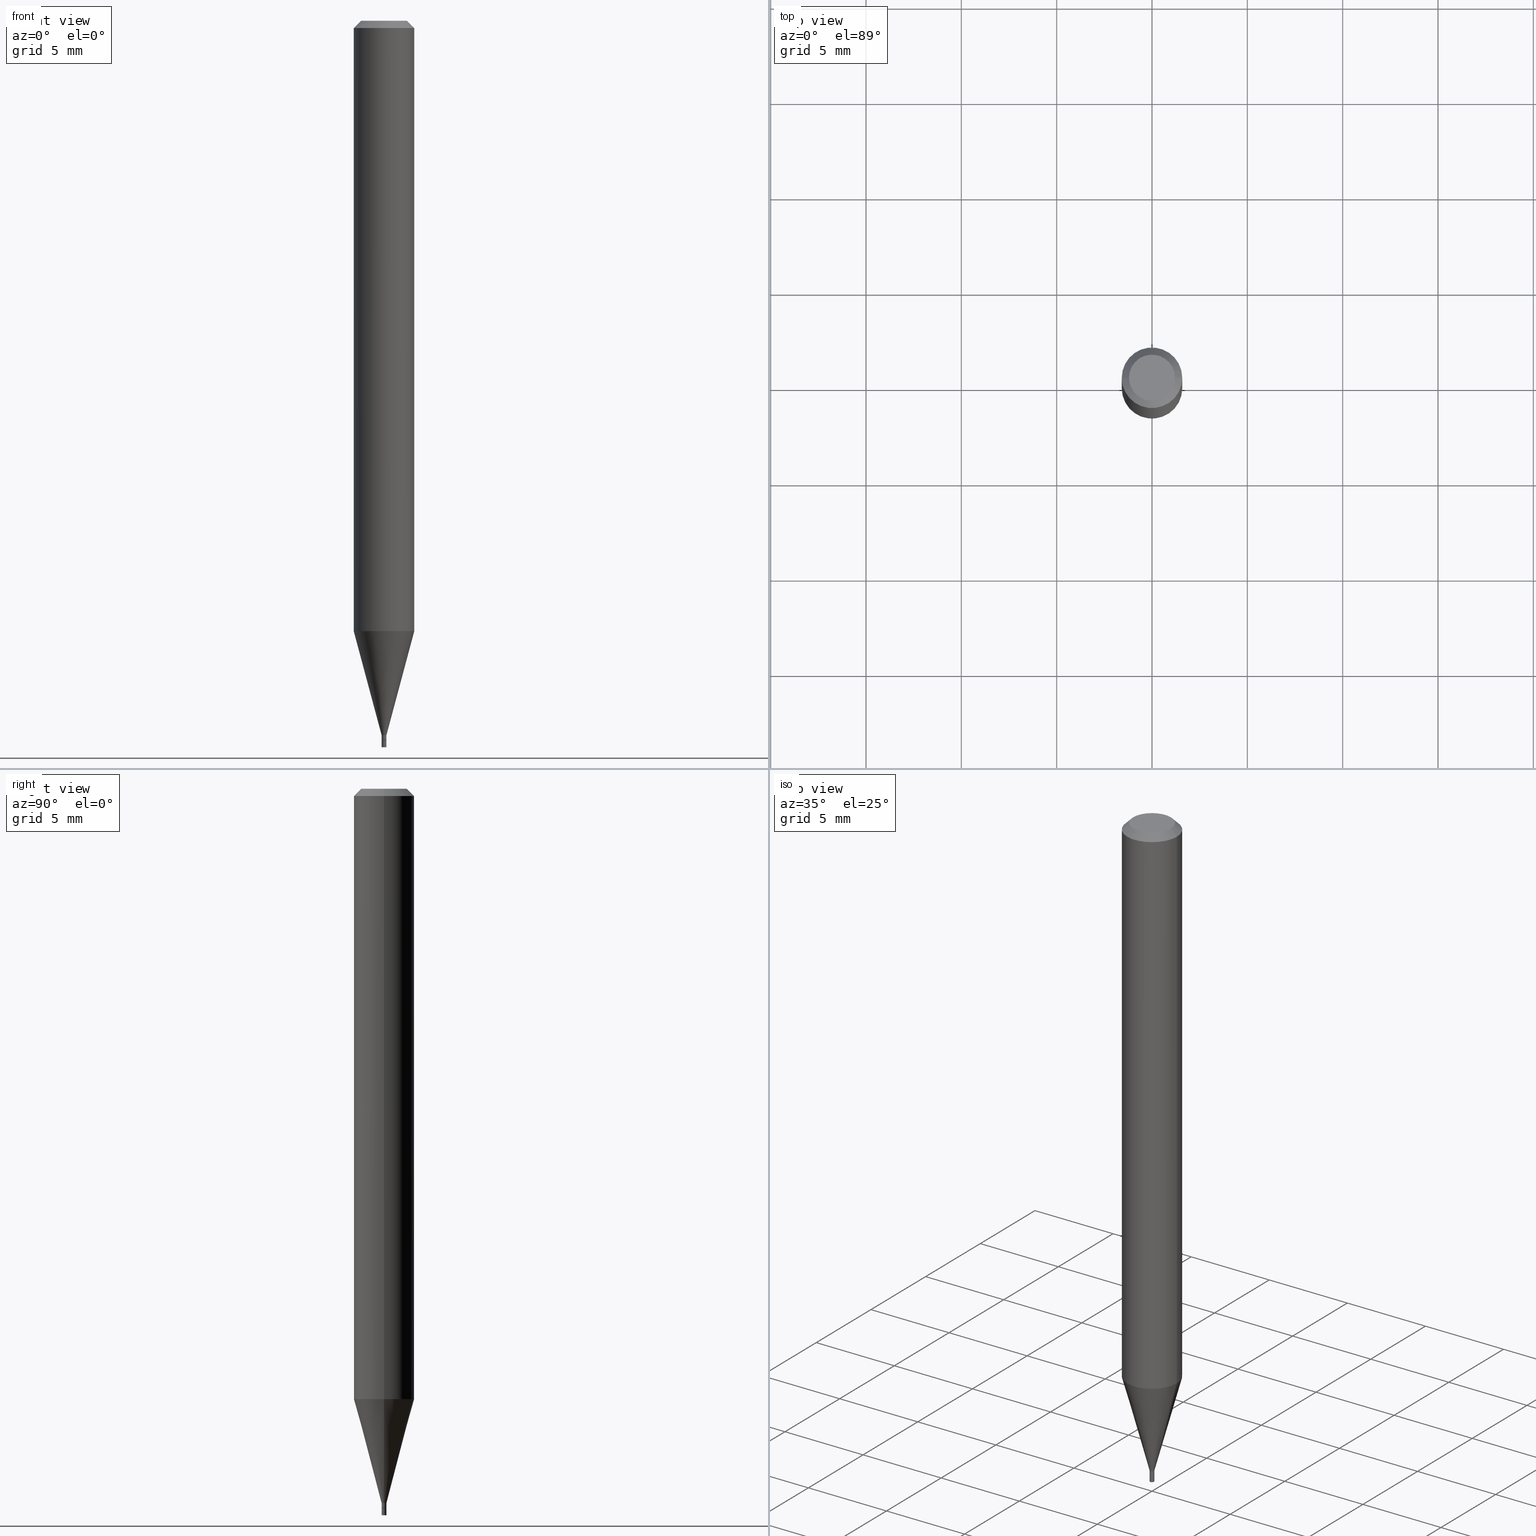
[diagram: canonical four-view strip — front | top / right | iso, engineering-drawing reading convention]
A machine part, canonical four-view strip (front | top / right | iso — engineering-drawing reading convention). The complete STEP part file that produces these views, byte-faithful:
ISO-10303-21;
HEADER;
FILE_DESCRIPTION (( 'STEP AP203' ),
    '1' );
FILE_NAME ('00306.STEP',
    '2024-03-19T20:57:16',
    ( '' ),
    ( '' ),
    'SwSTEP 2.0',
    'SolidWorks 2023',
    '' );
FILE_SCHEMA (( 'CONFIG_CONTROL_DESIGN' ));
ENDSEC;

DATA;
#1 = EDGE_CURVE ( 'NONE', #110, #408, #31, .T. ) ;
#2 = DIRECTION ( 'NONE',  ( 1.000000000000000000, -6.982962677686247778E-15, 0.000000000000000000 ) ) ;
#3 = VECTOR ( 'NONE', #451, 39.37007874015748143 ) ;
#4 = DIRECTION ( 'NONE',  ( 1.000000000000000000, -6.982962677686267499E-15, 4.852736867747366768E-29 ) ) ;
#5 = CYLINDRICAL_SURFACE ( 'NONE', #414, 0.004999999999999922909 ) ;
#6 = EDGE_CURVE ( 'NONE', #383, #111, #248, .T. ) ;
#7 = DIRECTION ( 'NONE',  ( -2.438088387897960049E-29, 3.491481338843145188E-15, 1.000000000000000000 ) ) ;
#8 = FACE_OUTER_BOUND ( 'NONE', #457, .T. ) ;
#9 = ORIENTED_EDGE ( 'NONE', *, *, #431, .F. ) ;
#10 = ORIENTED_EDGE ( 'NONE', *, *, #131, .F. ) ;
#11 = CIRCLE ( 'NONE', #372, 0.004499999999999999660 ) ;
#12 = LOCAL_TIME ( 16, 57, 16.00000000000000000, #160 ) ;
#13 = FACE_OUTER_BOUND ( 'NONE', #164, .T. ) ;
#14 = ORIENTED_EDGE ( 'NONE', *, *, #74, .T. ) ;
#15 = LINE ( 'NONE', #337, #3 ) ;
#16 = ORIENTED_EDGE ( 'NONE', *, *, #247, .F. ) ;
#17 = LINE ( 'NONE', #86, #463 ) ;
#18 = VECTOR ( 'NONE', #412, 39.37007874015748143 ) ;
#19 = PLANE ( 'NONE',  #305 ) ;
#20 = DIRECTION ( 'NONE',  ( -2.445468806185136597E-29, 3.491481338843145583E-15, 1.000000000000000000 ) ) ;
#21 = FACE_OUTER_BOUND ( 'NONE', #353, .T. ) ;
#22 = ADVANCED_FACE ( 'NONE', ( #404 ), #290, .T. ) ;
#23 = VECTOR ( 'NONE', #75, 39.37007874015748143 ) ;
#24 = CYLINDRICAL_SURFACE ( 'NONE', #241, 0.005000000000000000104 ) ;
#25 = CARTESIAN_POINT ( 'NONE',  ( -0.004499999999999999660, -5.152875365072866561E-15, -1.485000000000000098 ) ) ;
#26 = LINE ( 'NONE', #57, #403 ) ;
#27 = DATE_AND_TIME ( #318, #206 ) ;
#28 = ORIENTED_EDGE ( 'NONE', *, *, #366, .F. ) ;
#29 = ADVANCED_FACE ( 'NONE', ( #138 ), #165, .T. ) ;
#30 = AXIS2_PLACEMENT_3D ( 'NONE', #328, #105, #436 ) ;
#31 = LINE ( 'NONE', #271, #333 ) ;
#32 = APPROVAL_ROLE ( '' ) ;
#33 = CARTESIAN_POINT ( 'NONE',  ( 0.004499999999999999660, -5.216273120231659345E-15, -1.485000000000000098 ) ) ;
#34 = LINE ( 'NONE', #283, #281 ) ;
#35 = CIRCLE ( 'NONE', #80, 0.005000000000000000104 ) ;
#36 = DIRECTION ( 'NONE',  ( 1.000000000000000000, -6.982962677686265922E-15, 4.876176775795935793E-29 ) ) ;
#37 = EDGE_LOOP ( 'NONE', ( #10, #199, #462, #296 ) ) ;
#38 = EDGE_CURVE ( 'NONE', #177, #76, #55, .T. ) ;
#39 = DIRECTION ( 'NONE',  ( -2.445468806185136597E-29, 3.491481338843145583E-15, 1.000000000000000000 ) ) ;
#40 = DIRECTION ( 'NONE',  ( -1.000000000000000000, 6.982962677686265922E-15, -4.876176775795935793E-29 ) ) ;
#41 = EDGE_LOOP ( 'NONE', ( #284, #386 ) ) ;
#42 = CARTESIAN_POINT ( 'NONE',  ( 0.000000000000000000, 0.000000000000000000, 0.000000000000000000 ) ) ;
#43 = CARTESIAN_POINT ( 'NONE',  ( 0.004999999999999922042, -5.184849788182071492E-15, -1.475000000000000311 ) ) ;
#44 = CONICAL_SURFACE ( 'NONE', #447, 0.004499999999999999660, 0.7853981633974728149 ) ;
#45 = ADVANCED_FACE ( 'NONE', ( #8 ), #439, .F. ) ;
#46 = DIRECTION ( 'NONE',  ( -2.445468806185136597E-29, 3.491481338843145583E-15, 1.000000000000000000 ) ) ;
#47 = DIRECTION ( 'NONE',  ( 1.000000000000000000, -6.982962677686332186E-15, 0.000000000000000000 ) ) ;
#48 = CARTESIAN_POINT ( 'NONE',  ( 3.631521177184928138E-29, -5.184849788182071492E-15, -1.485000000000000098 ) ) ;
#49 = AXIS2_PLACEMENT_3D ( 'NONE', #73, #323, #402 ) ;
#50 = EDGE_CURVE ( 'NONE', #408, #197, #168, .T. ) ;
#51 = DIRECTION ( 'NONE',  ( 2.445468806185136597E-29, -3.491481338843145583E-15, -1.000000000000000000 ) ) ;
#52 = LINE ( 'NONE', #25, #104 ) ;
#53 = CARTESIAN_POINT ( 'NONE',  ( -0.004499999999999999660, -5.150226137898756937E-15, -1.485000000000000098 ) ) ;
#54 = APPROVAL_ROLE ( '' ) ;
#55 = CIRCLE ( 'NONE', #344, 0.005000000000000000104 ) ;
#56 = CIRCLE ( 'NONE', #326, 0.04749999999999999362 ) ;
#57 = CARTESIAN_POINT ( 'NONE',  ( -0.004999999999999922042, -5.114407838005636380E-15, -1.475000000000000311 ) ) ;
#58 =( NAMED_UNIT ( * ) PLANE_ANGLE_UNIT ( ) SI_UNIT ( $, .RADIAN. ) );
#59 = ADVANCED_FACE ( 'NONE', ( #286 ), #140, .F. ) ;
#60 = DATE_AND_TIME ( #392, #425 ) ;
#61 = ORIENTED_EDGE ( 'NONE', *, *, #38, .F. ) ;
#62 = ADVANCED_FACE ( 'NONE', ( #291 ), #362, .T. ) ;
#63 = APPROVAL_STATUS ( 'not_yet_approved' ) ;
#64 = CLOSED_SHELL ( 'NONE', ( #70, #198, #377, #62, #285, #121, #29, #268, #220, #277, #141, #22 ) ) ;
#65 = CONICAL_SURFACE ( 'NONE', #156, 0.06250000000000000000, 0.7853981633974373988 ) ;
#66 = APPROVAL_PERSON_ORGANIZATION ( #466, #368, #465 ) ;
#67 = ORIENTED_EDGE ( 'NONE', *, *, #85, .T. ) ;
#68 = CARTESIAN_POINT ( 'NONE',  ( -0.04749999999999999362, 3.578768372314216422E-16, 3.292288316969860333E-16 ) ) ;
#69 = DIRECTION ( 'NONE',  ( 1.000000000000000000, -6.982962677686225690E-15, 0.000000000000000000 ) ) ;
#70 = ADVANCED_FACE ( 'NONE', ( #173 ), #5, .T. ) ;
#71 = FACE_OUTER_BOUND ( 'NONE', #129, .T. ) ;
#72 = EDGE_CURVE ( 'NONE', #124, #102, #184, .T. ) ;
#73 = CARTESIAN_POINT ( 'NONE',  ( 3.668203209277704895E-29, -5.237222008264718177E-15, -1.500000000000000222 ) ) ;
#74 = EDGE_CURVE ( 'NONE', #407, #170, #424, .T. ) ;
#75 = DIRECTION ( 'NONE',  ( -2.445468806185136877E-29, 3.491481338843145188E-15, 1.000000000000000000 ) ) ;
#76 = VERTEX_POINT ( 'NONE', #255 ) ;
#77 = DIRECTION ( 'NONE',  ( -2.445468806185136597E-29, 3.491481338843145583E-15, 1.000000000000000000 ) ) ;
#78 = ORIENTED_EDGE ( 'NONE', *, *, #343, .T. ) ;
#79 = ORIENTED_EDGE ( 'NONE', *, *, #98, .T. ) ;
#80 = AXIS2_PLACEMENT_3D ( 'NONE', #226, #376, #47 ) ;
#81 = CARTESIAN_POINT ( 'NONE',  ( -0.004999999999999922042, -4.535503211155172266E-15, -1.475000000000000311 ) ) ;
#82 = ORIENTED_EDGE ( 'NONE', *, *, #74, .F. ) ;
#83 = CARTESIAN_POINT ( 'NONE',  ( 0.005000000000000000104, -3.491481338843132862E-17, 2.438088387897967984E-31 ) ) ;
#84 = DIRECTION ( 'NONE',  ( -1.000000000000000000, 6.982962677686265922E-15, -4.876176775795935793E-29 ) ) ;
#85 = EDGE_CURVE ( 'NONE', #170, #310, #359, .T. ) ;
#86 = CARTESIAN_POINT ( 'NONE',  ( -0.06250000000000000000, 4.440892098500626162E-16, -3.074334431409316114E-30 ) ) ;
#87 = ORIENTED_EDGE ( 'NONE', *, *, #89, .F. ) ;
#88 = CARTESIAN_POINT ( 'NONE',  ( 0.06250000000000000000, -4.888073874380388472E-16, -0.01499999999999999944 ) ) ;
#89 = EDGE_CURVE ( 'NONE', #256, #331, #299, .T. ) ;
#90 = ORIENTED_EDGE ( 'NONE', *, *, #228, .T. ) ;
#91 = LINE ( 'NONE', #345, #113 ) ;
#92 = CALENDAR_DATE ( 2024, 19, 3 ) ;
#93 = AXIS2_PLACEMENT_3D ( 'NONE', #258, #136, #4 ) ;
#94 = CIRCLE ( 'NONE', #149, 0.005000000000000000104 ) ;
#95 = PERSON_AND_ORGANIZATION_ROLE ( 'classification_officer' ) ;
#96 = CIRCLE ( 'NONE', #356, 0.004999999999999922909 ) ;
#97 = DIRECTION ( 'NONE',  ( 2.438088387897960049E-29, -3.491481338843145188E-15, -1.000000000000000000 ) ) ;
#98 = EDGE_CURVE ( 'NONE', #310, #235, #441, .T. ) ;
#99 = CARTESIAN_POINT ( 'NONE',  ( 3.631521177184928138E-29, -5.184849788182071492E-15, -1.485000000000000098 ) ) ;
#100 = ORIENTED_EDGE ( 'NONE', *, *, #317, .F. ) ;
#101 = CARTESIAN_POINT ( 'NONE',  ( 0.000000000000000000, 0.000000000000000000, 0.000000000000000000 ) ) ;
#102 = VERTEX_POINT ( 'NONE', #401 ) ;
#103 = AXIS2_PLACEMENT_3D ( 'NONE', #433, #7, #36 ) ;
#104 = VECTOR ( 'NONE', #130, 39.37007874015748854 ) ;
#105 = DIRECTION ( 'NONE',  ( -2.445468806185136597E-29, 3.491481338843145583E-15, 1.000000000000000000 ) ) ;
#106 = PRODUCT_RELATED_PRODUCT_CATEGORY ( 'detail', '', ( #172 ) ) ;
#107 = APPLICATION_CONTEXT ( 'configuration controlled 3d designs of mechanical parts and assemblies' ) ;
#108 = CARTESIAN_POINT ( 'NONE',  ( 3.630298442781835897E-29, -5.183104047512649988E-15, -1.484500000000000153 ) ) ;
#109 = DIRECTION ( 'NONE',  ( 1.000000000000000000, -6.982962677686225690E-15, 0.000000000000000000 ) ) ;
#110 = VERTEX_POINT ( 'NONE', #217 ) ;
#111 = VERTEX_POINT ( 'NONE', #33 ) ;
#112 = CARTESIAN_POINT ( 'NONE',  ( -0.06250000000000000000, -1.782440797268646111E-15, -0.01499999999999999944 ) ) ;
#113 = VECTOR ( 'NONE', #269, 39.37007874015748143 ) ;
#114 = DIRECTION ( 'NONE',  ( 1.000000000000000000, -6.982962677686266711E-15, 0.000000000000000000 ) ) ;
#115 = PRODUCT_DEFINITION ( 'UNKNOWN', '', #426, #188 ) ;
#116 = CARTESIAN_POINT ( 'NONE',  ( 3.630298442781835897E-29, -5.183104047512649988E-15, -1.484500000000000153 ) ) ;
#117 = CARTESIAN_POINT ( 'NONE',  ( 3.607066489123076592E-29, -5.149934974793640632E-15, -1.475000000000000311 ) ) ;
#118 = AXIS2_PLACEMENT_3D ( 'NONE', #361, #287, #438 ) ;
#119 = AXIS2_PLACEMENT_3D ( 'NONE', #176, #185, #303 ) ;
#120 = SECURITY_CLASSIFICATION ( '', '', #275 ) ;
#121 = ADVANCED_FACE ( 'NONE', ( #280 ), #254, .T. ) ;
#122 = FACE_OUTER_BOUND ( 'NONE', #391, .T. ) ;
#123 = CALENDAR_DATE ( 2024, 19, 3 ) ;
#124 = VERTEX_POINT ( 'NONE', #68 ) ;
#125 = DIRECTION ( 'NONE',  ( 0.2588190451025213501, 1.565188264969621968E-15, 0.9659258262890682012 ) ) ;
#126 = DIRECTION ( 'NONE',  ( 0.000000000000000000, 0.000000000000000000, 1.000000000000000000 ) ) ;
#127 = ORIENTED_EDGE ( 'NONE', *, *, #72, .T. ) ;
#128 = PERSON_AND_ORGANIZATION_ROLE ( 'design_supplier' ) ;
#129 = EDGE_LOOP ( 'NONE', ( #395, #292, #437, #203 ) ) ;
#130 = DIRECTION ( 'NONE',  ( -0.7071067811865647812, 7.493145998870415691E-15, 0.7071067811865301422 ) ) ;
#131 = EDGE_CURVE ( 'NONE', #102, #408, #34, .T. ) ;
#132 = CARTESIAN_POINT ( 'NONE',  ( 0.000000000000000000, 0.000000000000000000, 0.000000000000000000 ) ) ;
#133 = DIRECTION ( 'NONE',  ( -2.445468806185136597E-29, 3.491481338843145583E-15, 1.000000000000000000 ) ) ;
#134 = AXIS2_PLACEMENT_3D ( 'NONE', #117, #46, #378 ) ;
#135 = APPROVAL ( #63, 'UNSPECIFIED' ) ;
#136 = DIRECTION ( 'NONE',  ( -2.445468806185136597E-29, 3.491481338843145583E-15, 1.000000000000000000 ) ) ;
#137 = EDGE_LOOP ( 'NONE', ( #14, #67, #454, #423 ) ) ;
#138 = FACE_OUTER_BOUND ( 'NONE', #257, .T. ) ;
#139 = ORIENTED_EDGE ( 'NONE', *, *, #50, .T. ) ;
#140 = PLANE ( 'NONE',  #432 ) ;
#141 = ADVANCED_FACE ( 'NONE', ( #71 ), #274, .T. ) ;
#142 = CARTESIAN_POINT ( 'NONE',  ( 3.491481338846764088E-17, 0.004999999999994815016, -1.485000000000000098 ) ) ;
#143 = EDGE_LOOP ( 'NONE', ( #397, #79, #200, #9 ) ) ;
#144 = DIRECTION ( 'NONE',  ( -2.445468806185136597E-29, 3.491481338843145583E-15, 1.000000000000000000 ) ) ;
#145 = ORIENTED_EDGE ( 'NONE', *, *, #428, .F. ) ;
#146 = DIRECTION ( 'NONE',  ( -2.445468806185136597E-29, 3.491481338843145583E-15, 1.000000000000000000 ) ) ;
#147 = ORIENTED_EDGE ( 'NONE', *, *, #1, .T. ) ;
#148 = CC_DESIGN_DATE_AND_TIME_ASSIGNMENT ( #60, #352, ( #120 ) ) ;
#149 = AXIS2_PLACEMENT_3D ( 'NONE', #418, #455, #196 ) ;
#150 = DIRECTION ( 'NONE',  ( 0.7071067811865647812, -2.468850131082438104E-15, 0.7071067811865301422 ) ) ;
#151 = FACE_OUTER_BOUND ( 'NONE', #393, .T. ) ;
#152 = DIRECTION ( 'NONE',  ( 1.000000000000000000, -6.982962677686267499E-15, 4.852736867747366768E-29 ) ) ;
#153 = CC_DESIGN_PERSON_AND_ORGANIZATION_ASSIGNMENT ( #312, #315, ( #426 ) ) ;
#154 = DIRECTION ( 'NONE',  ( 2.445468806185136597E-29, -3.491481338843145583E-15, -1.000000000000000000 ) ) ;
#155 = APPLICATION_PROTOCOL_DEFINITION ( 'international standard', 'config_control_design', 1994, #107 ) ;
#156 = AXIS2_PLACEMENT_3D ( 'NONE', #230, #51, #222 ) ;
#157 = DIRECTION ( 'NONE',  ( -2.445468806185136597E-29, 3.491481338843145583E-15, 1.000000000000000000 ) ) ;
#158 = APPROVAL_DATE_TIME ( #346, #240 ) ;
#159 = CARTESIAN_POINT ( 'NONE',  ( 0.000000000000000000, 0.000000000000000000, 0.000000000000000000 ) ) ;
#160 = COORDINATED_UNIVERSAL_TIME_OFFSET ( 5, 0, .BEHIND. ) ;
#161 = EDGE_CURVE ( 'NONE', #235, #310, #229, .T. ) ;
#162 = SHAPE_DEFINITION_REPRESENTATION ( #370, #464 ) ;
#163 = LOCAL_TIME ( 16, 57, 16.00000000000000000, #390 ) ;
#164 = EDGE_LOOP ( 'NONE', ( #127, #347 ) ) ;
#165 = CYLINDRICAL_SURFACE ( 'NONE', #325, 0.06250000000000000000 ) ;
#166 = CC_DESIGN_PERSON_AND_ORGANIZATION_ASSIGNMENT ( #419, #349, ( #115 ) ) ;
#167 = CARTESIAN_POINT ( 'NONE',  ( 0.000000000000000000, 0.000000000000000000, 0.000000000000000000 ) ) ;
#168 = CIRCLE ( 'NONE', #379, 0.06250000000000000000 ) ;
#169 = DIRECTION ( 'NONE',  ( -2.445468806185136597E-29, 3.491481338843145583E-15, 1.000000000000000000 ) ) ;
#170 = VERTEX_POINT ( 'NONE', #449 ) ;
#171 = DIRECTION ( 'NONE',  ( -2.445468806185136597E-29, 3.491481338843145583E-15, 1.000000000000000000 ) ) ;
#172 = PRODUCT ( '00306', '00306', '', ( #396 ) ) ;
#173 = FACE_OUTER_BOUND ( 'NONE', #137, .T. ) ;
#174 = CIRCLE ( 'NONE', #210, 0.06250000000000000000 ) ;
#175 = AXIS2_PLACEMENT_3D ( 'NONE', #189, #421, #382 ) ;
#176 = CARTESIAN_POINT ( 'NONE',  ( 3.631521177184928138E-29, -5.184849788182071492E-15, -1.485000000000000098 ) ) ;
#177 = VERTEX_POINT ( 'NONE', #266 ) ;
#178 = ORIENTED_EDGE ( 'NONE', *, *, #1, .F. ) ;
#179 = DIMENSIONAL_EXPONENTS ( 1.000000000000000000, 0.000000000000000000, 0.000000000000000000, 0.000000000000000000, 0.000000000000000000, 0.000000000000000000, 0.000000000000000000 ) ;
#180 = PERSON ( 'UNSPECIFIED', 'UNSPECIFIED', 'UNSPECIFIED', ('UNSPECIFIED'), ('UNSPECIFIED'), ('UNSPECIFIED') ) ;
#181 = CARTESIAN_POINT ( 'NONE',  ( 3.668203209277705088E-31, -5.237222008264718399E-17, -0.01499999999999999944 ) ) ;
#182 = LINE ( 'NONE', #446, #249 ) ;
#183 = EDGE_CURVE ( 'NONE', #111, #407, #182, .T. ) ;
#184 = CIRCLE ( 'NONE', #93, 0.04749999999999999362 ) ;
#185 = DIRECTION ( 'NONE',  ( -2.438088387897960049E-29, 3.491481338843145188E-15, 1.000000000000000000 ) ) ;
#186 = FACE_OUTER_BOUND ( 'NONE', #242, .T. ) ;
#187 = CC_DESIGN_DATE_AND_TIME_ASSIGNMENT ( #27, #357, ( #115 ) ) ;
#188 = DESIGN_CONTEXT ( 'detailed design', #107, 'design' ) ;
#189 = CARTESIAN_POINT ( 'NONE',  ( 3.082286193725132894E-29, -4.400687794154770769E-15, -1.260407078564790062 ) ) ;
#190 = MANIFOLD_SOLID_BREP ( 'Body-Move/Copy2[1]', #204 ) ;
#191 = CYLINDRICAL_SURFACE ( 'NONE', #387, 0.005000000000000000104 ) ;
#192 = CALENDAR_DATE ( 2024, 19, 3 ) ;
#193 = AXIS2_PLACEMENT_3D ( 'NONE', #367, #39, #215 ) ;
#194 = ORGANIZATION ( 'UNSPECIFIED', 'UNSPECIFIED', '' ) ;
#195 = MANIFOLD_SOLID_BREP ( 'Body-Move/Copy2[2]', #64 ) ;
#196 = DIRECTION ( 'NONE',  ( 1.000000000000000000, -6.982962677686332186E-15, 0.000000000000000000 ) ) ;
#197 = VERTEX_POINT ( 'NONE', #112 ) ;
#198 = ADVANCED_FACE ( 'NONE', ( #265 ), #44, .T. ) ;
#199 = ORIENTED_EDGE ( 'NONE', *, *, #72, .F. ) ;
#200 = ORIENTED_EDGE ( 'NONE', *, *, #428, .T. ) ;
#201 = APPROVAL_DATE_TIME ( #243, #368 ) ;
#202 = DATE_AND_TIME ( #123, #163 ) ;
#203 = ORIENTED_EDGE ( 'NONE', *, *, #213, .F. ) ;
#204 = CLOSED_SHELL ( 'NONE', ( #360, #45, #415, #59 ) ) ;
#205 = AXIS2_PLACEMENT_3D ( 'NONE', #263, #144, #373 ) ;
#206 = LOCAL_TIME ( 16, 57, 16.00000000000000000, #246 ) ;
#207 = ORIENTED_EDGE ( 'NONE', *, *, #355, .F. ) ;
#208 = DIRECTION ( 'NONE',  ( -2.445468806185136597E-29, 3.491481338843145583E-15, 1.000000000000000000 ) ) ;
#209 = DIRECTION ( 'NONE',  ( -2.445468806185136597E-29, 3.491481338843145583E-15, 1.000000000000000000 ) ) ;
#210 = AXIS2_PLACEMENT_3D ( 'NONE', #181, #146, #114 ) ;
#211 = CC_DESIGN_SECURITY_CLASSIFICATION ( #120, ( #426 ) ) ;
#212 = CARTESIAN_POINT ( 'NONE',  ( 3.607066489123076592E-29, -5.149934974793640632E-15, -1.475000000000000311 ) ) ;
#213 = EDGE_CURVE ( 'NONE', #170, #407, #96, .T. ) ;
#214 = APPLICATION_CONTEXT ( 'configuration controlled 3d designs of mechanical parts and assemblies' ) ;
#215 = DIRECTION ( 'NONE',  ( 1.000000000000000000, -6.982962677686247778E-15, 0.000000000000000000 ) ) ;
#216 = ORIENTED_EDGE ( 'NONE', *, *, #247, .T. ) ;
#217 = CARTESIAN_POINT ( 'NONE',  ( 0.06249999999999999306, -4.837122961510163228E-15, -1.260407078564790062 ) ) ;
#218 = ORIENTED_EDGE ( 'NONE', *, *, #6, .F. ) ;
#219 = ORIENTED_EDGE ( 'NONE', *, *, #366, .T. ) ;
#220 = ADVANCED_FACE ( 'NONE', ( #13 ), #19, .F. ) ;
#221 = CONICAL_SURFACE ( 'NONE', #134, 0.004999999999999922042, 0.2617993877991500740 ) ;
#222 = DIRECTION ( 'NONE',  ( -1.000000000000000000, 6.982962677686266711E-15, 0.000000000000000000 ) ) ;
#223 = ORIENTED_EDGE ( 'NONE', *, *, #98, .F. ) ;
#224 = ORIENTED_EDGE ( 'NONE', *, *, #253, .F. ) ;
#225 = EDGE_CURVE ( 'NONE', #407, #235, #15, .T. ) ;
#226 = CARTESIAN_POINT ( 'NONE',  ( 3.631521177184928138E-29, -5.184849788182071492E-15, -1.485000000000000098 ) ) ;
#227 = CARTESIAN_POINT ( 'NONE',  ( -8.051188380117617343E-45, 1.149496322079166104E-30, 3.292288316969884985E-16 ) ) ;
#228 = EDGE_CURVE ( 'NONE', #381, #197, #17, .T. ) ;
#229 = CIRCLE ( 'NONE', #289, 0.004999999999999922042 ) ;
#230 = CARTESIAN_POINT ( 'NONE',  ( 3.668203209277705088E-31, -5.237222008264718399E-17, -0.01499999999999999944 ) ) ;
#231 = EDGE_LOOP ( 'NONE', ( #350, #354, #82, #298 ) ) ;
#232 = LINE ( 'NONE', #458, #267 ) ;
#233 = FACE_OUTER_BOUND ( 'NONE', #336, .T. ) ;
#234 = PERSON_AND_ORGANIZATION ( #180, #194 ) ;
#235 = VERTEX_POINT ( 'NONE', #43 ) ;
#236 = DIRECTION ( 'NONE',  ( -2.445468806185136597E-29, 3.491481338843145583E-15, 1.000000000000000000 ) ) ;
#237 = AXIS2_PLACEMENT_3D ( 'NONE', #42, #259, #369 ) ;
#238 = APPLICATION_PROTOCOL_DEFINITION ( 'international standard', 'config_control_design', 1994, #214 ) ;
#239 = CIRCLE ( 'NONE', #205, 0.06250000000000000000 ) ;
#240 = APPROVAL ( #385, 'UNSPECIFIED' ) ;
#241 = AXIS2_PLACEMENT_3D ( 'NONE', #272, #157, #311 ) ;
#242 = EDGE_LOOP ( 'NONE', ( #316, #445, #16, #145 ) ) ;
#243 = DATE_AND_TIME ( #92, #398 ) ;
#244 = COORDINATED_UNIVERSAL_TIME_OFFSET ( 5, 0, .BEHIND. ) ;
#245 = ORIENTED_EDGE ( 'NONE', *, *, #399, .F. ) ;
#246 = COORDINATED_UNIVERSAL_TIME_OFFSET ( 5, 0, .BEHIND. ) ;
#247 = EDGE_CURVE ( 'NONE', #110, #381, #239, .T. ) ;
#248 = CIRCLE ( 'NONE', #118, 0.004499999999999999660 ) ;
#249 = VECTOR ( 'NONE', #150, 39.37007874015748854 ) ;
#250 = DIRECTION ( 'NONE',  ( -2.445468806185136597E-29, 3.491481338843145583E-15, 1.000000000000000000 ) ) ;
#251 = DIRECTION ( 'NONE',  ( 1.000000000000000000, -6.982962677686266711E-15, 0.000000000000000000 ) ) ;
#252 = DIRECTION ( 'NONE',  ( 1.000000000000000000, -6.982962677686246200E-15, 0.000000000000000000 ) ) ;
#253 = EDGE_CURVE ( 'NONE', #111, #383, #11, .T. ) ;
#254 = CONICAL_SURFACE ( 'NONE', #452, 0.004999999999999922042, 0.2617993877991500740 ) ;
#255 = CARTESIAN_POINT ( 'NONE',  ( -0.005000000000000000104, -5.175508761435389793E-15, -1.485000000000000098 ) ) ;
#256 = VERTEX_POINT ( 'NONE', #448 ) ;
#257 = EDGE_LOOP ( 'NONE', ( #322, #351, #147, #338 ) ) ;
#258 = CARTESIAN_POINT ( 'NONE',  ( -8.051188380117617343E-45, 1.149496322079166104E-30, 3.292288316969884985E-16 ) ) ;
#259 = DIRECTION ( 'NONE',  ( -2.445468806185136597E-29, 3.491481338843145583E-15, 1.000000000000000000 ) ) ;
#260 = CC_DESIGN_PERSON_AND_ORGANIZATION_ASSIGNMENT ( #278, #430, ( #172 ) ) ;
#261 = PLANE ( 'NONE',  #119 ) ;
#262 = VECTOR ( 'NONE', #341, 39.37007874015748143 ) ;
#263 = CARTESIAN_POINT ( 'NONE',  ( 3.082286193725132894E-29, -4.400687794154770769E-15, -1.260407078564790062 ) ) ;
#264 = LINE ( 'NONE', #83, #262 ) ;
#265 = FACE_OUTER_BOUND ( 'NONE', #231, .T. ) ;
#266 = CARTESIAN_POINT ( 'NONE',  ( 0.005000000000000000104, -5.219764601570503141E-15, -1.485000000000000098 ) ) ;
#267 = VECTOR ( 'NONE', #125, 39.37007874015747433 ) ;
#268 = ADVANCED_FACE ( 'NONE', ( #444 ), #65, .T. ) ;
#269 = DIRECTION ( 'NONE',  ( -2.445468806185136877E-29, 3.491481338843145188E-15, 1.000000000000000000 ) ) ;
#270 = APPROVAL_DATE_TIME ( #202, #135 ) ;
#271 = CARTESIAN_POINT ( 'NONE',  ( 0.06250000000000000000, -4.364351673553916694E-16, 3.047610484872459871E-30 ) ) ;
#272 = CARTESIAN_POINT ( 'NONE',  ( 0.000000000000000000, 0.000000000000000000, 0.000000000000000000 ) ) ;
#273 =( LENGTH_UNIT ( ) NAMED_UNIT ( * ) SI_UNIT ( $, .METRE. ) );
#274 = CONICAL_SURFACE ( 'NONE', #334, 0.004499999999999999660, 0.7853981633974728149 ) ;
#275 = SECURITY_CLASSIFICATION_LEVEL ( 'unclassified' ) ;
#276 = LENGTH_MEASURE_WITH_UNIT ( LENGTH_MEASURE( 0.02539999999999999897 ), #273 );
#277 = ADVANCED_FACE ( 'NONE', ( #151 ), #261, .F. ) ;
#278 = PERSON_AND_ORGANIZATION ( #180, #194 ) ;
#279 = UNCERTAINTY_MEASURE_WITH_UNIT (LENGTH_MEASURE( 1.000000000000000082E-05 ), #321, 'distance_accuracy_value', 'NONE');
#280 = FACE_OUTER_BOUND ( 'NONE', #143, .T. ) ;
#281 = VECTOR ( 'NONE', #435, 39.37007874015748143 ) ;
#282 = APPROVAL_PERSON_ORGANIZATION ( #234, #240, #54 ) ;
#283 = CARTESIAN_POINT ( 'NONE',  ( 0.06250000000000000000, -4.811533449433679005E-16, -0.01499999999999999944 ) ) ;
#284 = ORIENTED_EDGE ( 'NONE', *, *, #38, .T. ) ;
#285 = ADVANCED_FACE ( 'NONE', ( #186 ), #221, .T. ) ;
#286 = FACE_OUTER_BOUND ( 'NONE', #41, .T. ) ;
#287 = DIRECTION ( 'NONE',  ( -2.445468806185136597E-29, 3.491481338843145583E-15, 1.000000000000000000 ) ) ;
#288 = CARTESIAN_POINT ( 'NONE',  ( 3.631521177184928138E-29, -5.184849788182071492E-15, -1.485000000000000098 ) ) ;
#289 = AXIS2_PLACEMENT_3D ( 'NONE', #212, #413, #411 ) ;
#290 = CYLINDRICAL_SURFACE ( 'NONE', #237, 0.004999999999999922909 ) ;
#291 = FACE_OUTER_BOUND ( 'NONE', #375, .T. ) ;
#292 = ORIENTED_EDGE ( 'NONE', *, *, #6, .T. ) ;
#293 = ORIENTED_EDGE ( 'NONE', *, *, #399, .T. ) ;
#294 = EDGE_CURVE ( 'NONE', #197, #408, #174, .T. ) ;
#295 = CARTESIAN_POINT ( 'NONE',  ( 3.631521177184928138E-29, -5.184849788182071492E-15, -1.485000000000000098 ) ) ;
#296 = ORIENTED_EDGE ( 'NONE', *, *, #294, .T. ) ;
#297 = CARTESIAN_POINT ( 'NONE',  ( -0.06250000000000000000, 3.840629472727444916E-16, -0.01499999999999999944 ) ) ;
#298 = ORIENTED_EDGE ( 'NONE', *, *, #183, .F. ) ;
#299 = CIRCLE ( 'NONE', #49, 0.005000000000000000104 ) ;
#300 = CARTESIAN_POINT ( 'NONE',  ( 3.316907271900976096E-16, 0.04749999999999999362, -1.230947746555162994E-18 ) ) ;
#301 = CARTESIAN_POINT ( 'NONE',  ( 0.005000000000000000104, -5.272136821653149826E-15, -1.500000000000000222 ) ) ;
#302 = EDGE_CURVE ( 'NONE', #124, #197, #340, .T. ) ;
#303 = DIRECTION ( 'NONE',  ( 1.000000000000000000, -6.982962677686265922E-15, 4.876176775795935793E-29 ) ) ;
#304 = ORIENTED_EDGE ( 'NONE', *, *, #85, .F. ) ;
#305 = AXIS2_PLACEMENT_3D ( 'NONE', #300, #417, #84 ) ;
#306 = DIRECTION ( 'NONE',  ( 1.000000000000000000, -6.982962677686265922E-15, 4.876176775795935793E-29 ) ) ;
#307 =( GEOMETRIC_REPRESENTATION_CONTEXT ( 3 ) GLOBAL_UNCERTAINTY_ASSIGNED_CONTEXT ( ( #279 ) ) GLOBAL_UNIT_ASSIGNED_CONTEXT ( ( #321, #58, #422 ) ) REPRESENTATION_CONTEXT ( 'NONE', 'WORKASPACE' ) );
#308 = DIRECTION ( 'NONE',  ( 1.000000000000000000, 0.000000000000000000, 0.000000000000000000 ) ) ;
#309 = ORIENTED_EDGE ( 'NONE', *, *, #131, .T. ) ;
#310 = VERTEX_POINT ( 'NONE', #81 ) ;
#311 = DIRECTION ( 'NONE',  ( 1.000000000000000000, -6.982962677686265922E-15, 4.876176775795935793E-29 ) ) ;
#312 = PERSON_AND_ORGANIZATION ( #180, #194 ) ;
#313 = ORIENTED_EDGE ( 'NONE', *, *, #225, .T. ) ;
#314 = CARTESIAN_POINT ( 'NONE',  ( 3.668203209277705088E-31, -5.237222008264718399E-17, -0.01499999999999999944 ) ) ;
#315 = PERSON_AND_ORGANIZATION_ROLE ( 'creator' ) ;
#316 = ORIENTED_EDGE ( 'NONE', *, *, #161, .T. ) ;
#317 = EDGE_CURVE ( 'NONE', #76, #177, #35, .T. ) ;
#318 = CALENDAR_DATE ( 2024, 19, 3 ) ;
#319 = EDGE_LOOP ( 'NONE', ( #304, #374, #313, #223 ) ) ;
#320 = COORDINATED_UNIVERSAL_TIME_OFFSET ( 5, 0, .BEHIND. ) ;
#321 =( CONVERSION_BASED_UNIT ( 'INCH', #276 ) LENGTH_UNIT ( ) NAMED_UNIT ( #179 ) );
#322 = ORIENTED_EDGE ( 'NONE', *, *, #228, .F. ) ;
#323 = DIRECTION ( 'NONE',  ( -2.445468806185136597E-29, 3.491481338843145583E-15, 1.000000000000000000 ) ) ;
#324 = DIRECTION ( 'NONE',  ( -2.445468806185136597E-29, 3.491481338843145583E-15, 1.000000000000000000 ) ) ;
#325 = AXIS2_PLACEMENT_3D ( 'NONE', #167, #209, #400 ) ;
#326 = AXIS2_PLACEMENT_3D ( 'NONE', #227, #20, #152 ) ;
#327 = CC_DESIGN_APPROVAL ( #240, ( #426 ) ) ;
#328 = CARTESIAN_POINT ( 'NONE',  ( 0.000000000000000000, 0.000000000000000000, 0.000000000000000000 ) ) ;
#329 = DIRECTION ( 'NONE',  ( 1.000000000000000000, -6.982962677686267499E-15, 4.876176775795935793E-29 ) ) ;
#330 = CARTESIAN_POINT ( 'NONE',  ( 3.668203209277705088E-31, -5.237222008264718399E-17, -0.01499999999999999944 ) ) ;
#331 = VERTEX_POINT ( 'NONE', #301 ) ;
#332 = CC_DESIGN_PERSON_AND_ORGANIZATION_ASSIGNMENT ( #427, #95, ( #120 ) ) ;
#333 = VECTOR ( 'NONE', #420, 39.37007874015748143 ) ;
#334 = AXIS2_PLACEMENT_3D ( 'NONE', #99, #169, #69 ) ;
#335 = DIRECTION ( 'NONE',  ( 1.000000000000000000, -6.982962677686225690E-15, 0.000000000000000000 ) ) ;
#336 = EDGE_LOOP ( 'NONE', ( #28, #429, #78, #100 ) ) ;
#337 = CARTESIAN_POINT ( 'NONE',  ( 0.004999999999999922909, -3.491481338843079861E-17, 2.438088387897930324E-31 ) ) ;
#338 = ORIENTED_EDGE ( 'NONE', *, *, #294, .F. ) ;
#339 = DIRECTION ( 'NONE',  ( -2.445468806185136597E-29, 3.491481338843145583E-15, 1.000000000000000000 ) ) ;
#340 = LINE ( 'NONE', #297, #18 ) ;
#341 = DIRECTION ( 'NONE',  ( -2.445468806185136877E-29, 3.491481338843145188E-15, 1.000000000000000000 ) ) ;
#342 = DIRECTION ( 'NONE',  ( -0.2588190451025213501, 5.211531920934551042E-15, 0.9659258262890682012 ) ) ;
#343 = EDGE_CURVE ( 'NONE', #331, #177, #264, .T. ) ;
#344 = AXIS2_PLACEMENT_3D ( 'NONE', #288, #324, #406 ) ;
#345 = CARTESIAN_POINT ( 'NONE',  ( -0.005000000000000000104, 3.552713678800501003E-17, -2.459467545127453136E-31 ) ) ;
#346 = DATE_AND_TIME ( #192, #12 ) ;
#347 = ORIENTED_EDGE ( 'NONE', *, *, #355, .T. ) ;
#348 = DIRECTION ( 'NONE',  ( -1.000000000000000000, 6.982962677686266711E-15, 0.000000000000000000 ) ) ;
#349 = PERSON_AND_ORGANIZATION_ROLE ( 'creator' ) ;
#350 = ORIENTED_EDGE ( 'NONE', *, *, #253, .T. ) ;
#351 = ORIENTED_EDGE ( 'NONE', *, *, #431, .T. ) ;
#352 = DATE_TIME_ROLE ( 'classification_date' ) ;
#353 = EDGE_LOOP ( 'NONE', ( #207, #309, #139, #460 ) ) ;
#354 = ORIENTED_EDGE ( 'NONE', *, *, #442, .T. ) ;
#355 = EDGE_CURVE ( 'NONE', #102, #124, #56, .T. ) ;
#356 = AXIS2_PLACEMENT_3D ( 'NONE', #116, #339, #380 ) ;
#357 = DATE_TIME_ROLE ( 'creation_date' ) ;
#358 = APPROVAL_PERSON_ORGANIZATION ( #456, #135, #32 ) ;
#359 = LINE ( 'NONE', #405, #23 ) ;
#360 = ADVANCED_FACE ( 'NONE', ( #122 ), #191, .T. ) ;
#361 = CARTESIAN_POINT ( 'NONE',  ( 3.631521177184928138E-29, -5.184849788182071492E-15, -1.485000000000000098 ) ) ;
#362 = CYLINDRICAL_SURFACE ( 'NONE', #30, 0.06250000000000000000 ) ;
#363 = ORIENTED_EDGE ( 'NONE', *, *, #50, .F. ) ;
#364 = AXIS2_PLACEMENT_3D ( 'NONE', #314, #154, #348 ) ;
#365 = CONICAL_SURFACE ( 'NONE', #364, 0.06250000000000000000, 0.7853981633974373988 ) ;
#366 = EDGE_CURVE ( 'NONE', #256, #76, #91, .T. ) ;
#367 = CARTESIAN_POINT ( 'NONE',  ( 3.607066489123076592E-29, -5.149934974793640632E-15, -1.475000000000000311 ) ) ;
#368 = APPROVAL ( #459, 'UNSPECIFIED' ) ;
#369 = DIRECTION ( 'NONE',  ( 1.000000000000000000, -6.982962677686267499E-15, 4.876176775795935793E-29 ) ) ;
#370 = PRODUCT_DEFINITION_SHAPE ( 'NONE', 'NONE',  #115 ) ;
#371 = DIRECTION ( 'NONE',  ( -2.445468806185136877E-29, 3.491481338843145188E-15, 1.000000000000000000 ) ) ;
#372 = AXIS2_PLACEMENT_3D ( 'NONE', #295, #77, #109 ) ;
#373 = DIRECTION ( 'NONE',  ( 1.000000000000000000, -6.982962677686262766E-15, 0.000000000000000000 ) ) ;
#374 = ORIENTED_EDGE ( 'NONE', *, *, #213, .T. ) ;
#375 = EDGE_LOOP ( 'NONE', ( #216, #90, #363, #178 ) ) ;
#376 = DIRECTION ( 'NONE',  ( -2.445468806185136597E-29, 3.491481338843145583E-15, 1.000000000000000000 ) ) ;
#377 = ADVANCED_FACE ( 'NONE', ( #21 ), #365, .T. ) ;
#378 = DIRECTION ( 'NONE',  ( 1.000000000000000000, -6.982962677686247778E-15, 0.000000000000000000 ) ) ;
#379 = AXIS2_PLACEMENT_3D ( 'NONE', #330, #133, #251 ) ;
#380 = DIRECTION ( 'NONE',  ( 1.000000000000000000, -6.982962677686246200E-15, 0.000000000000000000 ) ) ;
#381 = VERTEX_POINT ( 'NONE', #388 ) ;
#382 = DIRECTION ( 'NONE',  ( 1.000000000000000000, -6.982962677686262766E-15, 0.000000000000000000 ) ) ;
#383 = VERTEX_POINT ( 'NONE', #53 ) ;
#384 = CARTESIAN_POINT ( 'NONE',  ( 0.004999999999999922909, -5.218018860901080849E-15, -1.484500000000000153 ) ) ;
#385 = APPROVAL_STATUS ( 'not_yet_approved' ) ;
#386 = ORIENTED_EDGE ( 'NONE', *, *, #317, .T. ) ;
#387 = AXIS2_PLACEMENT_3D ( 'NONE', #159, #236, #306 ) ;
#388 = CARTESIAN_POINT ( 'NONE',  ( -0.06249999999999999306, -3.956598584304708153E-15, -1.260407078564790062 ) ) ;
#389 = CIRCLE ( 'NONE', #175, 0.06250000000000000000 ) ;
#390 = COORDINATED_UNIVERSAL_TIME_OFFSET ( 5, 0, .BEHIND. ) ;
#391 = EDGE_LOOP ( 'NONE', ( #293, #219, #61, #440 ) ) ;
#392 = CALENDAR_DATE ( 2024, 19, 3 ) ;
#393 = EDGE_LOOP ( 'NONE', ( #224, #218 ) ) ;
#394 = EDGE_CURVE ( 'NONE', #310, #381, #26, .T. ) ;
#395 = ORIENTED_EDGE ( 'NONE', *, *, #442, .F. ) ;
#396 = MECHANICAL_CONTEXT ( 'NONE', #214, 'mechanical' ) ;
#397 = ORIENTED_EDGE ( 'NONE', *, *, #394, .F. ) ;
#398 = LOCAL_TIME ( 16, 57, 16.00000000000000000, #320 ) ;
#399 = EDGE_CURVE ( 'NONE', #331, #256, #94, .T. ) ;
#400 = DIRECTION ( 'NONE',  ( 1.000000000000000000, -6.982962677686266711E-15, 4.876176775795935793E-29 ) ) ;
#401 = CARTESIAN_POINT ( 'NONE',  ( 0.04749999999999999362, -4.035134999187572707E-16, 3.292288316969910130E-16 ) ) ;
#402 = DIRECTION ( 'NONE',  ( 1.000000000000000000, -6.982962677686332186E-15, 0.000000000000000000 ) ) ;
#403 = VECTOR ( 'NONE', #342, 39.37007874015747433 ) ;
#404 = FACE_OUTER_BOUND ( 'NONE', #319, .T. ) ;
#405 = CARTESIAN_POINT ( 'NONE',  ( -0.004999999999999922909, 3.552713678800446153E-17, -2.459467545127415038E-31 ) ) ;
#406 = DIRECTION ( 'NONE',  ( 1.000000000000000000, -6.982962677686332186E-15, 0.000000000000000000 ) ) ;
#407 = VERTEX_POINT ( 'NONE', #384 ) ;
#408 = VERTEX_POINT ( 'NONE', #88 ) ;
#409 = DIRECTION ( 'NONE',  ( -2.445468806185136597E-29, 3.491481338843145583E-15, 1.000000000000000000 ) ) ;
#410 = AXIS2_PLACEMENT_3D ( 'NONE', #108, #208, #252 ) ;
#411 = DIRECTION ( 'NONE',  ( 1.000000000000000000, -6.982962677686247778E-15, 0.000000000000000000 ) ) ;
#412 = DIRECTION ( 'NONE',  ( -0.7071067811865398012, 2.468850131082175808E-15, -0.7071067811865552333 ) ) ;
#413 = DIRECTION ( 'NONE',  ( -2.445468806185136597E-29, 3.491481338843145583E-15, 1.000000000000000000 ) ) ;
#414 = AXIS2_PLACEMENT_3D ( 'NONE', #101, #250, #329 ) ;
#415 = ADVANCED_FACE ( 'NONE', ( #233 ), #24, .T. ) ;
#416 = CC_DESIGN_APPROVAL ( #135, ( #115 ) ) ;
#417 = DIRECTION ( 'NONE',  ( 2.438088387897960049E-29, -3.491481338843145188E-15, -1.000000000000000000 ) ) ;
#418 = CARTESIAN_POINT ( 'NONE',  ( 3.668203209277704895E-29, -5.237222008264718177E-15, -1.500000000000000222 ) ) ;
#419 = PERSON_AND_ORGANIZATION ( #180, #194 ) ;
#420 = DIRECTION ( 'NONE',  ( -2.445468806185136877E-29, 3.491481338843145188E-15, 1.000000000000000000 ) ) ;
#421 = DIRECTION ( 'NONE',  ( -2.445468806185136597E-29, 3.491481338843145583E-15, 1.000000000000000000 ) ) ;
#422 =( NAMED_UNIT ( * ) SI_UNIT ( $, .STERADIAN. ) SOLID_ANGLE_UNIT ( ) );
#423 = ORIENTED_EDGE ( 'NONE', *, *, #225, .F. ) ;
#424 = CIRCLE ( 'NONE', #410, 0.004999999999999922909 ) ;
#425 = LOCAL_TIME ( 16, 57, 16.00000000000000000, #244 ) ;
#426 = PRODUCT_DEFINITION_FORMATION_WITH_SPECIFIED_SOURCE ( 'ANY', '', #172, .NOT_KNOWN. ) ;
#427 = PERSON_AND_ORGANIZATION ( #180, #194 ) ;
#428 = EDGE_CURVE ( 'NONE', #235, #110, #232, .T. ) ;
#429 = ORIENTED_EDGE ( 'NONE', *, *, #89, .T. ) ;
#430 = PERSON_AND_ORGANIZATION_ROLE ( 'design_owner' ) ;
#431 = EDGE_CURVE ( 'NONE', #381, #110, #389, .T. ) ;
#432 = AXIS2_PLACEMENT_3D ( 'NONE', #142, #97, #40 ) ;
#433 = CARTESIAN_POINT ( 'NONE',  ( 3.576687321579069994E-29, -5.368277968210015545E-15, -1.500000000000000222 ) ) ;
#434 = AXIS2_PLACEMENT_3D ( 'NONE', #132, #126, #308 ) ;
#435 = DIRECTION ( 'NONE',  ( 0.7071067811865398012, -7.319954787623229224E-15, -0.7071067811865552333 ) ) ;
#436 = DIRECTION ( 'NONE',  ( 1.000000000000000000, -6.982962677686266711E-15, 4.876176775795935793E-29 ) ) ;
#437 = ORIENTED_EDGE ( 'NONE', *, *, #183, .T. ) ;
#438 = DIRECTION ( 'NONE',  ( 1.000000000000000000, -6.982962677686225690E-15, 0.000000000000000000 ) ) ;
#439 = PLANE ( 'NONE',  #103 ) ;
#440 = ORIENTED_EDGE ( 'NONE', *, *, #343, .F. ) ;
#441 = CIRCLE ( 'NONE', #193, 0.004999999999999922042 ) ;
#442 = EDGE_CURVE ( 'NONE', #383, #170, #52, .T. ) ;
#443 = CARTESIAN_POINT ( 'NONE',  ( 3.607066489123076592E-29, -5.149934974793640632E-15, -1.475000000000000311 ) ) ;
#444 = FACE_OUTER_BOUND ( 'NONE', #37, .T. ) ;
#445 = ORIENTED_EDGE ( 'NONE', *, *, #394, .T. ) ;
#446 = CARTESIAN_POINT ( 'NONE',  ( 0.004499999999999999660, -5.216273120231659345E-15, -1.485000000000000098 ) ) ;
#447 = AXIS2_PLACEMENT_3D ( 'NONE', #48, #409, #335 ) ;
#448 = CARTESIAN_POINT ( 'NONE',  ( -0.005000000000000000104, -5.175508761435389793E-15, -1.500000000000000222 ) ) ;
#449 = CARTESIAN_POINT ( 'NONE',  ( -0.004999999999999922909, -5.147576910724645736E-15, -1.484500000000000153 ) ) ;
#450 = CC_DESIGN_PERSON_AND_ORGANIZATION_ASSIGNMENT ( #461, #128, ( #426 ) ) ;
#451 = DIRECTION ( 'NONE',  ( -2.445468806185136877E-29, 3.491481338843145188E-15, 1.000000000000000000 ) ) ;
#452 = AXIS2_PLACEMENT_3D ( 'NONE', #443, #171, #2 ) ;
#453 = CC_DESIGN_APPROVAL ( #368, ( #120 ) ) ;
#454 = ORIENTED_EDGE ( 'NONE', *, *, #161, .F. ) ;
#455 = DIRECTION ( 'NONE',  ( -2.445468806185136597E-29, 3.491481338843145583E-15, 1.000000000000000000 ) ) ;
#456 = PERSON_AND_ORGANIZATION ( #180, #194 ) ;
#457 = EDGE_LOOP ( 'NONE', ( #245, #87 ) ) ;
#458 = CARTESIAN_POINT ( 'NONE',  ( 0.004999999999999922042, -5.184849788182071492E-15, -1.475000000000000311 ) ) ;
#459 = APPROVAL_STATUS ( 'not_yet_approved' ) ;
#460 = ORIENTED_EDGE ( 'NONE', *, *, #302, .F. ) ;
#461 = PERSON_AND_ORGANIZATION ( #180, #194 ) ;
#462 = ORIENTED_EDGE ( 'NONE', *, *, #302, .T. ) ;
#463 = VECTOR ( 'NONE', #371, 39.37007874015748143 ) ;
#464 = ADVANCED_BREP_SHAPE_REPRESENTATION ( '00306', ( #190, #195, #434 ), #307 ) ;
#465 = APPROVAL_ROLE ( '' ) ;
#466 = PERSON_AND_ORGANIZATION ( #180, #194 ) ;
ENDSEC;
END-ISO-10303-21;
